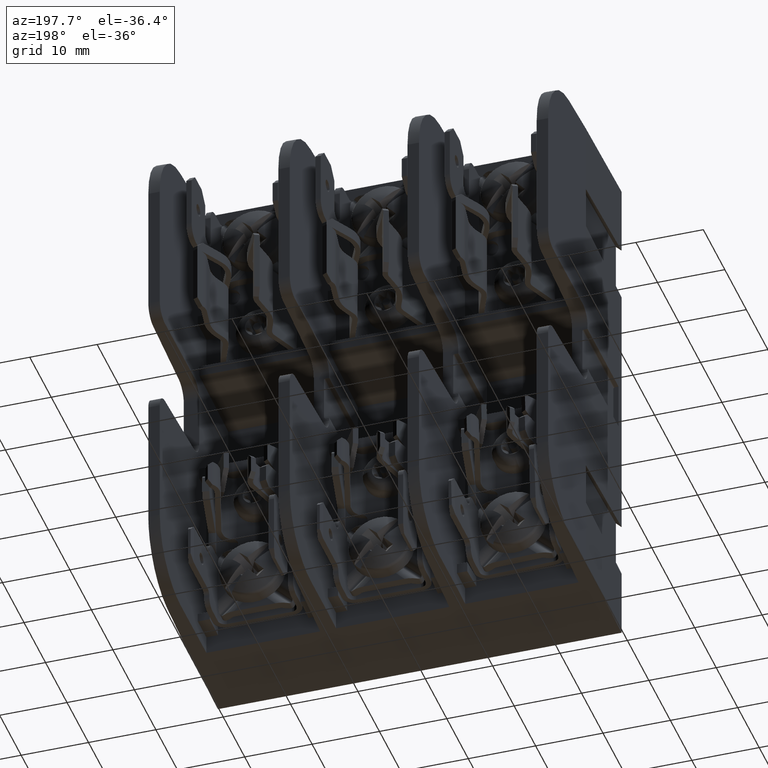
[diagram: clean part render]
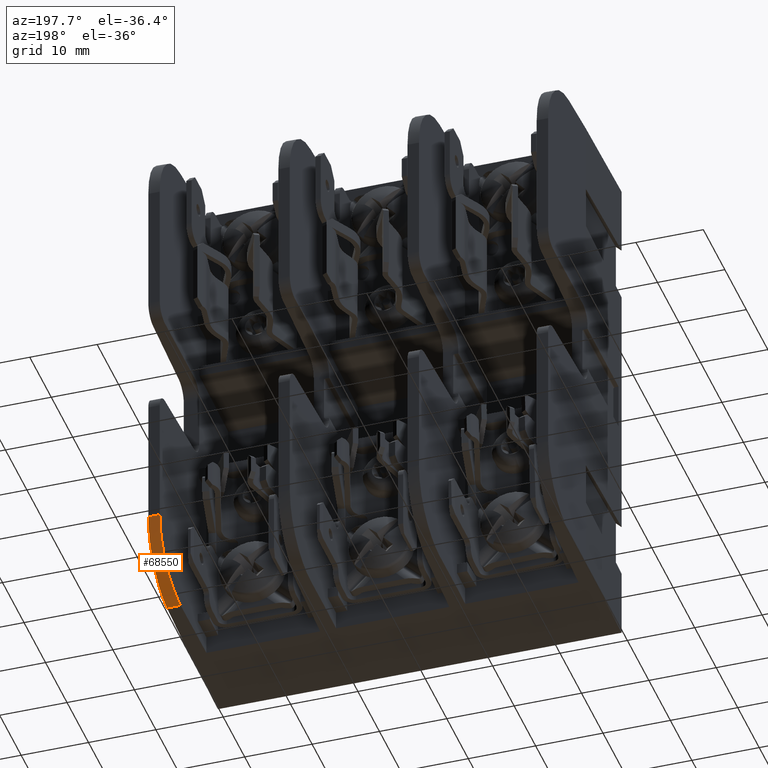
[diagram: same view with one face highlighted and labeled with its STEP entity id]
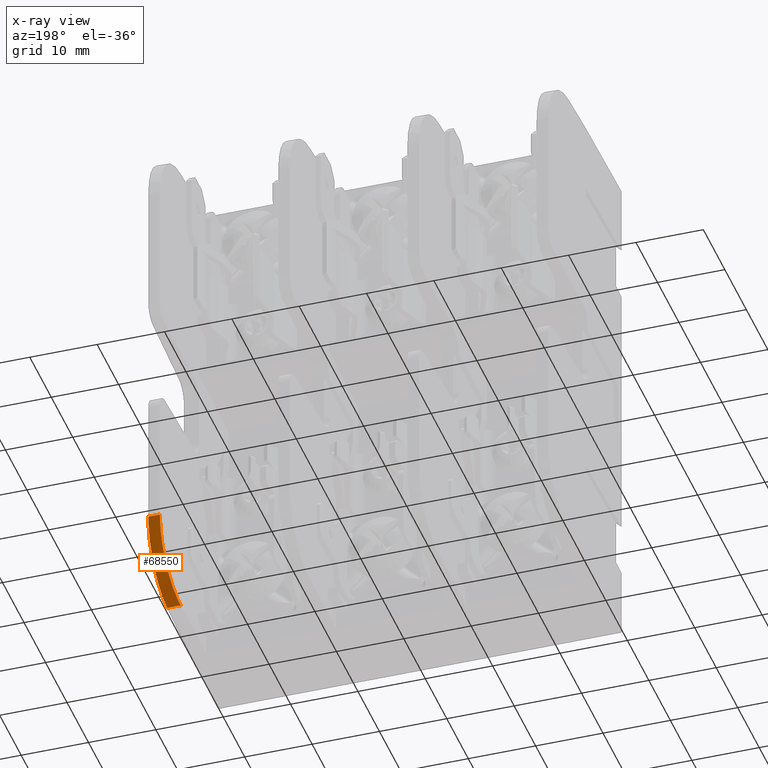
[diagram: x-ray of the same camera — body ghosted, the highlighted face saturated]
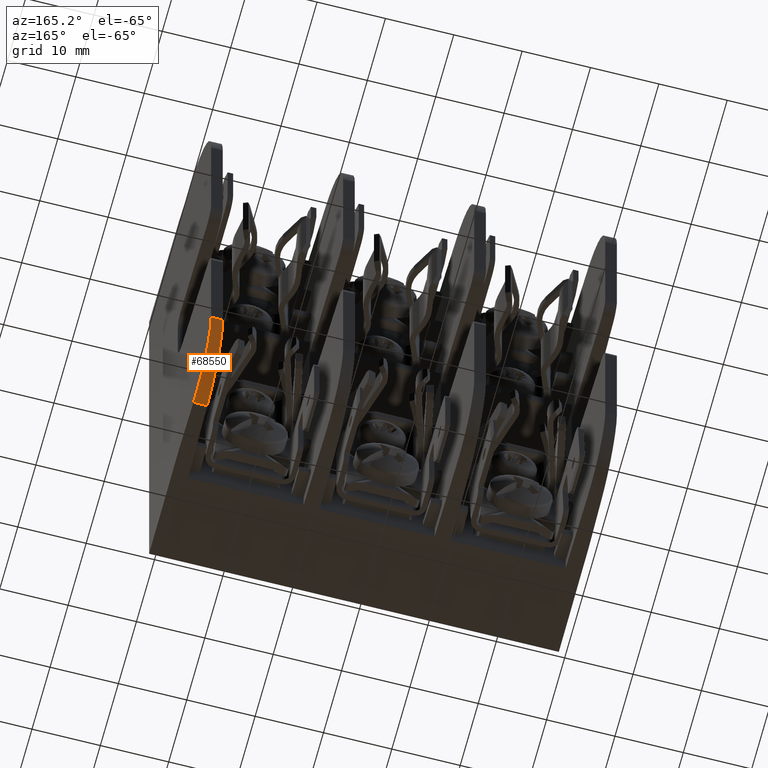
[diagram: same view with one face highlighted and labeled with its STEP entity id]
A machine part, auxiliary view. The second image highlights one B-rep face of the part: STEP entity #68550.
The next image is the same camera in x-ray: the body ghosted, the highlighted face saturated — about 0% of this face is hidden behind the body in this view.
A second angle (auxiliary view) of the same face is appended — the face is thin or edge-on in the first view.
In plain terms, the highlighted cylindrical surface (partial cylindrical patch) has radius 9.525 mm, axis along (1, 0, 0).
Its self-contained STEP definition (entity closure, byte-faithful):
#2998 = CYLINDRICAL_SURFACE ( 'NONE', #129397, 0.3750000000000001100 ) ;
#7678 = CARTESIAN_POINT ( 'NONE',  ( 0.4134796571473789400, 1.310000000000000100, -1.117120501413162000 ) ) ;
#9684 = EDGE_CURVE ( 'NONE', #114213, #71530, #43661, .T. ) ;
#14010 = VECTOR ( 'NONE', #45628, 39.37007874015748100 ) ;
#20207 = CARTESIAN_POINT ( 'NONE',  ( 0.3464796571473789900, 1.310000000000000100, -1.117120501413162000 ) ) ;
#23047 = VERTEX_POINT ( 'NONE', #7678 ) ;
#26202 = CARTESIAN_POINT ( 'NONE',  ( 0.3438892350687728400, 1.161594818509143600, -1.484436215100038800 ) ) ;
#26729 = CARTESIAN_POINT ( 'NONE',  ( 0.4134796571473789400, 1.310000000000000100, -1.117120501413162000 ) ) ;
#28160 = DIRECTION ( 'NONE',  ( -1.000000000000000000, -0.0000000000000000000, -0.0000000000000000000 ) ) ;
#37911 = CARTESIAN_POINT ( 'NONE',  ( 0.3464796571473789900, 1.310000000000000300, -1.330758150942666300 ) ) ;
#42875 = ORIENTED_EDGE ( 'NONE', *, *, #126794, .F. ) ;
#43661 = LINE ( 'NONE', #45182, #14010 ) ;
#45182 = CARTESIAN_POINT ( 'NONE',  ( 0.4249999999999999900, 0.9480873112634363700, -1.491892061545322600 ) ) ;
#45628 = DIRECTION ( 'NONE',  ( 1.000000000000000000, 0.0000000000000000000, 0.0000000000000000000 ) ) ;
#49048 = CARTESIAN_POINT ( 'NONE',  ( 0.3401624476671378800, 0.9480873112634363700, -1.491892061545322200 ) ) ;
#53196 = ORIENTED_EDGE ( 'NONE', *, *, #111648, .F. ) ;
#54661 = EDGE_CURVE ( 'NONE', #96925, #114213, #80264, .T. ) ;
#63944 = FACE_OUTER_BOUND ( 'NONE', #127458, .T. ) ;
#68550 = ADVANCED_FACE ( 'NONE', ( #63944 ), #2998, .T. ) ;
#68673 = VECTOR ( 'NONE', #28160, 39.37007874015748100 ) ;
#70955 = CARTESIAN_POINT ( 'NONE',  ( 0.4160700792259852100, 1.161594818509143600, -1.484436215100039000 ) ) ;
#71530 = VERTEX_POINT ( 'NONE', #101685 ) ;
#72363 = CARTESIAN_POINT ( 'NONE',  ( 0.4134796571473789400, 1.310000000000000100, -1.117120501413162000 ) ) ;
#80143 = ORIENTED_EDGE ( 'NONE', *, *, #54661, .F. ) ;
#80264 =( BOUNDED_CURVE ( )  B_SPLINE_CURVE ( 3, ( #115501, #37911, #26202, #49048 ),
 .UNSPECIFIED., .F., .F. ) 
 B_SPLINE_CURVE_WITH_KNOTS ( ( 4, 4 ),
 ( 0.0000000000000000000, 1.535889741755014400 ),
 .UNSPECIFIED. ) 
 CURVE ( )  GEOMETRIC_REPRESENTATION_ITEM ( )  RATIONAL_B_SPLINE_CURVE ( ( 1.000000000000000000, 0.8128932002257665000, 0.8128932002257665000, 1.000000000000000000 ) ) 
 REPRESENTATION_ITEM ( '' )  );
#88989 = CARTESIAN_POINT ( 'NONE',  ( 0.3401624476671378800, 0.9480873112634363700, -1.491892061545322200 ) ) ;
#93259 = CARTESIAN_POINT ( 'NONE',  ( 0.4134796571473790000, 1.310000000000000100, -1.330758150942666500 ) ) ;
#94915 = DIRECTION ( 'NONE',  ( 0.0000000000000000000, 0.0000000000000000000, -1.000000000000000000 ) ) ;
#96925 = VERTEX_POINT ( 'NONE', #20207 ) ;
#100428 = ORIENTED_EDGE ( 'NONE', *, *, #9684, .F. ) ;
#101608 = LINE ( 'NONE', #72363, #68673 ) ;
#101685 = CARTESIAN_POINT ( 'NONE',  ( 0.4197968666276200600, 0.9480873112634362600, -1.491892061545323300 ) ) ;
#105531 = CARTESIAN_POINT ( 'NONE',  ( 0.4249999999999999900, 0.9350000000000000500, -1.117120501413161800 ) ) ;
#106424 =( BOUNDED_CURVE ( )  B_SPLINE_CURVE ( 3, ( #136889, #70955, #93259, #26729 ),
 .UNSPECIFIED., .F., .F. ) 
 B_SPLINE_CURVE_WITH_KNOTS ( ( 4, 4 ),
 ( 1.605702911834779200, 3.141592653589792700 ),
 .UNSPECIFIED. ) 
 CURVE ( )  GEOMETRIC_REPRESENTATION_ITEM ( )  RATIONAL_B_SPLINE_CURVE ( ( 1.000000000000000000, 0.8128932002257666100, 0.8128932002257666100, 1.000000000000000000 ) ) 
 REPRESENTATION_ITEM ( '' )  );
#111648 = EDGE_CURVE ( 'NONE', #23047, #96925, #101608, .T. ) ;
#114213 = VERTEX_POINT ( 'NONE', #88989 ) ;
#115501 = CARTESIAN_POINT ( 'NONE',  ( 0.3464796571473789900, 1.310000000000000100, -1.117120501413162000 ) ) ;
#116737 = DIRECTION ( 'NONE',  ( 1.000000000000000000, 0.0000000000000000000, 0.0000000000000000000 ) ) ;
#126794 = EDGE_CURVE ( 'NONE', #71530, #23047, #106424, .T. ) ;
#127458 = EDGE_LOOP ( 'NONE', ( #80143, #53196, #42875, #100428 ) ) ;
#129397 = AXIS2_PLACEMENT_3D ( 'NONE', #105531, #116737, #94915 ) ;
#136889 = CARTESIAN_POINT ( 'NONE',  ( 0.4197968666276200600, 0.9480873112634362600, -1.491892061545323300 ) ) ;